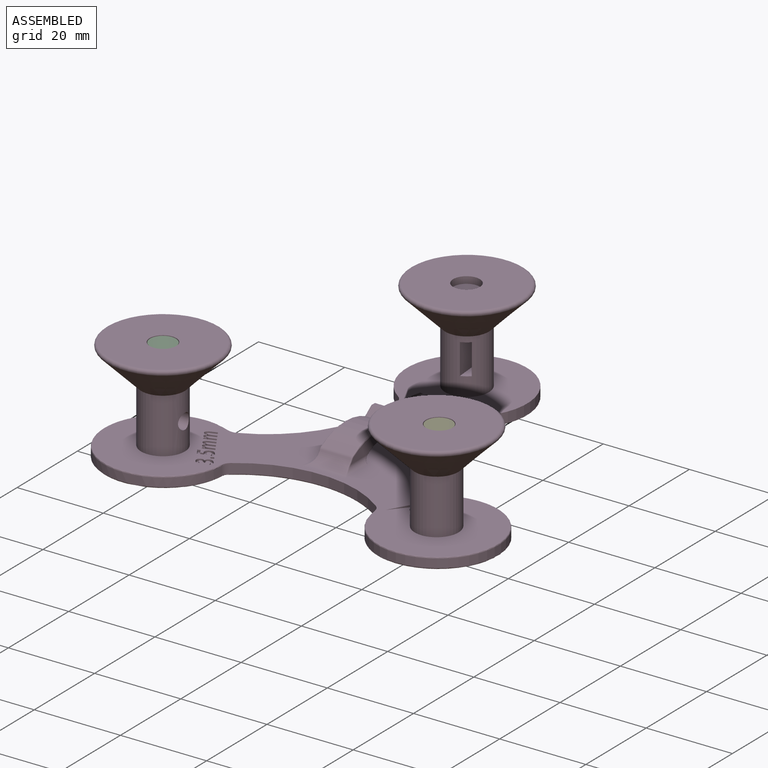
[diagram: assembled view]
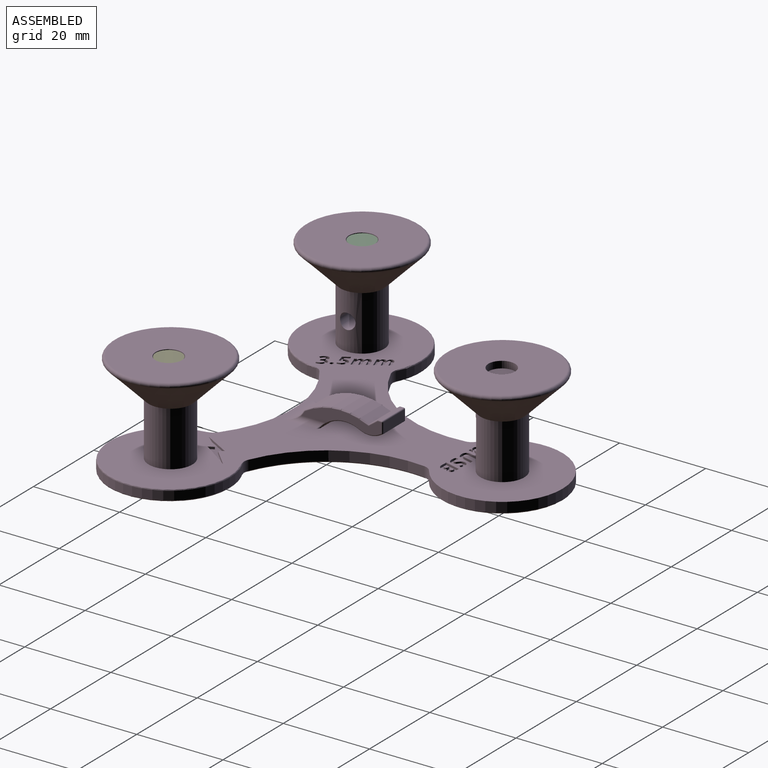
[diagram: assembled view, second angle]
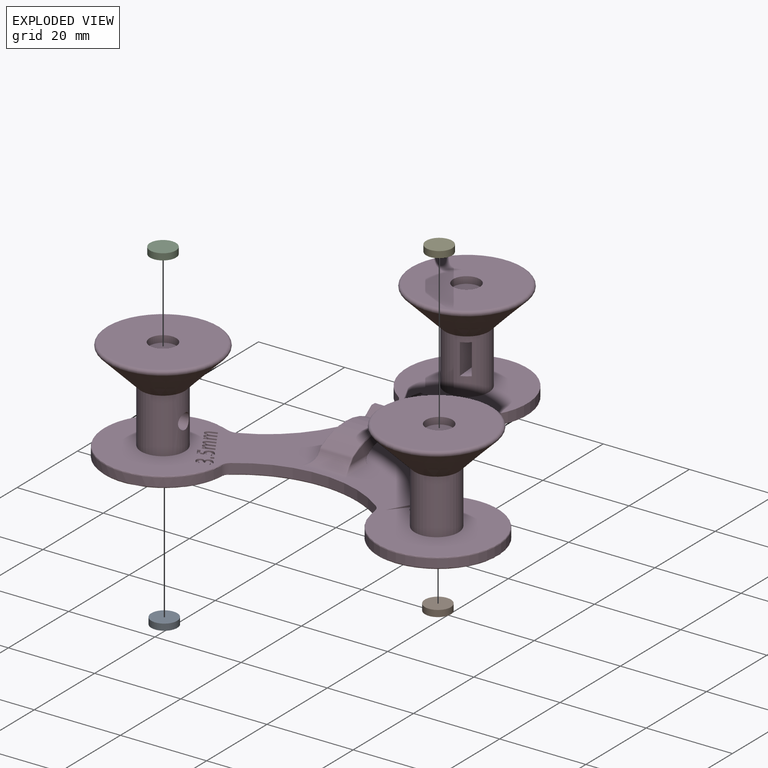
[diagram: exploded view]
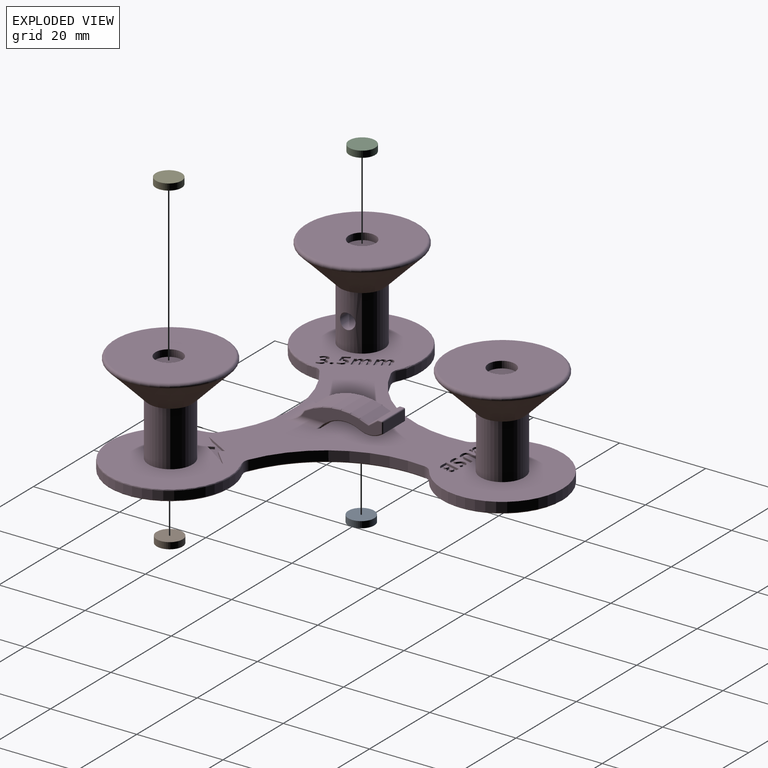
[diagram: exploded view, second angle]
ASSEMBLY  parts=5 mates=4
PART A: 3 faces, bbox 6x6x1.5 mm
  f0: cylinder r=3mm len=6mm, axis (0,0,-1), area 28.3mm2, adj f1,f2
  f1: plane 6x6mm, normal (0,0,1), area 28.3mm2, adj f0
  f2: plane 6x6mm, normal (0,0,-1), area 28.3mm2, adj f0
PART B: same geometry as A
PART C: same geometry as A
PART D: 319 faces, bbox 93.9x85.4x24.3 mm
  f0: plane 18.61x3.56mm, normal (1,0,0), area 40mm2, adj f43,f45,f47,f49,f50,f52,f53,f55
  f1: plane 18.61x3.56mm, normal (-1,0,0), area 40mm2, adj f42,f51,f54,f57,f59,f61,f63,f64
  f2: cylinder r=5.08mm len=12.7mm, axis (0,0,-1), area 389.3mm2, adj f3,f17,f295,f296,f297,f298
  f3: plane 91.08x82.83mm, normal (0,0,1), area 2398.7mm2, adj f2,f4,f6,f8,f9,f10,f12,f36
  f4: cylinder r=5.08mm len=12.7mm, axis (0,0,-1), area 392.3mm2, adj f3,f15,f78,f79,f80,f81
  f5: cylinder r=13.97mm len=27.94mm, axis (0,0,-1), area 144.3mm2, adj f71,f77,f301,f304
  f6: cylinder r=27.94mm len=33.66mm, axis (0,0,-1), area 82.5mm2, adj f3,f73,f301,f302,f307,f308
  f7: cylinder r=13.97mm len=27.94mm, axis (0,0,-1), area 144.3mm2, adj f75,f76,f307,f310
  f8: cylinder r=27.94mm len=29.14mm, axis (0,0,-1), area 82.5mm2, adj f3,f74,f310,f311,f314
  f9: cylinder r=13.97mm len=27.94mm, axis (0,0,-1), area 162.3mm2, adj f3,f72,f312,f314
  f10: cylinder r=27.94mm len=29.14mm, axis (0,0,-1), area 82.5mm2, adj f3,f70,f304,f305,f312
  f11: plane 90.93x82.42mm, normal (0,0,-1), area 2622.1mm2, adj f67,f68,f69,f70,f71,f72,f73,f74
  f12: cylinder r=5.08mm len=12.7mm, axis (0,0,-1), area 384.7mm2, adj f3,f13,f83
  f13: cone r=5.08mm half-angle=45deg, axis (0,0,1), area 623.1mm2, adj f12,f21
  f14: plane 24.87x24.87mm, normal (0,0,1), area 455.7mm2, adj f21,f26
  f15: cone r=5.08mm half-angle=45deg, axis (0,0,1), area 623.1mm2, adj f4,f20
  f16: plane 24.87x24.87mm, normal (0,0,1), area 455.7mm2, adj f20,f24
  f17: cone r=5.08mm half-angle=45deg, axis (0,0,1), area 623.1mm2, adj f2,f19
  f18: plane 24.87x24.87mm, normal (0,0,1), area 455.8mm2, adj f19,f22
  f19: torus R=12.44mm, axis (0,0,1), area 121.2mm2, adj f17,f18
  f20: torus R=12.44mm, axis (0,0,1), area 121.2mm2, adj f15,f16
  f21: torus R=12.44mm, axis (0,0,1), area 121.2mm2, adj f13,f14
  f22: cylinder r=3.1mm len=6.2mm, axis (0,0,1), area 30.9mm2, adj f18,f23
  f23: plane 6.2x6.2mm, normal (0,0,1), area 30.2mm2, adj f22
  f24: cylinder r=3.1mm len=6.2mm, axis (0,0,1), area 30.9mm2, adj f16,f25
  f25: plane 6.2x6.2mm, normal (0,0,1), area 30.2mm2, adj f24
  f26: cylinder r=3.1mm len=6.2mm, axis (0,0,1), area 30.9mm2, adj f14,f27
  f27: plane 6.2x6.2mm, normal (0,0,1), area 30.2mm2, adj f26
  f28: cylinder r=3.1mm len=6.2mm, axis (0,0,-1), area 26mm2, adj f29,f67
  f29: plane 6.2x6.2mm, normal (0,0,-1), area 30.2mm2, adj f28
  f30: cylinder r=3.1mm len=6.2mm, axis (0,0,-1), area 26mm2, adj f31,f68
  f31: plane 6.2x6.2mm, normal (0,0,-1), area 30.2mm2, adj f30
  f32: cylinder r=3.1mm len=6.2mm, axis (0,0,-1), area 26mm2, adj f33,f69
  f33: plane 6.2x6.2mm, normal (0,0,-1), area 30.2mm2, adj f32
  f34: plane 7.11x0.95mm, normal (0,0,1), area 6.7mm2, adj f39,f56,f60,f61
  f35: plane 7.11x2.46mm, normal (0,1,0), area 17.5mm2, adj f37,f55,f60,f63
  f36: cylinder r=7.21mm len=8.76mm, axis (-1,0,0), area 69.3mm2, adj f3,f46,f49,f65,f66,f317
  f37: plane 7.11x0.36mm, normal (0,0.55,-0.83), area 3.1mm2, adj f35,f52,f64,f317
  f38: cylinder r=15.19mm len=14.69mm, axis (-1,0,0), area 109.3mm2, adj f39,f41,f50,f57
  f39: plane 7.11x2.11mm, normal (0,-0.59,0.81), area 18.6mm2, adj f34,f38,f53,f59
  f40: cylinder r=4.57mm len=10.16mm, axis (-1,0,0), area 39.7mm2, adj f3,f41,f44,f45,f48,f51
  f41: cylinder r=1.27mm len=7.11mm, axis (1,0,0), area 4.4mm2, adj f38,f40,f47,f54
  f42: cylinder r=1.27mm len=9.13mm, axis (0,-1,0), area 13.2mm2, adj f1,f3,f48,f66
  f43: cylinder r=1.27mm len=9.13mm, axis (0,1,0), area 13.2mm2, adj f0,f3,f44,f46
  f44: bspline ~3.85x1.82mm, area 0.5mm2, adj f40,f43,f45
  f45: torus R=4.83mm, axis (-1,0,0), area 0.4mm2, adj f0,f40,f44,f47
  f46: bspline ~2.36x2.11mm, area 1mm2, adj f3,f36,f43,f49
  f47: torus R=1.02mm, axis (-1,0,0), area 0.2mm2, adj f0,f41,f45,f50
  f48: bspline ~3.85x1.82mm, area 0.5mm2, adj f40,f42,f51
  f49: torus R=7.46mm, axis (-1,0,0), area 3.3mm2, adj f0,f36,f46,f316
  f50: torus R=14.94mm, axis (-1,0,0), area 6.1mm2, adj f0,f38,f47,f53
  f51: torus R=4.83mm, axis (-1,0,0), area 0.4mm2, adj f1,f40,f48,f54
  f52: cylinder r=0.25mm len=0.5mm, axis (0,-0.83,-0.55), area 0.1mm2, adj f0,f37,f55,f316
  f53: cylinder r=0.25mm len=2.38mm, axis (0,0.81,0.59), area 1.1mm2, adj f0,f39,f50,f56
  f54: torus R=1.02mm, axis (-1,0,0), area 0.2mm2, adj f1,f41,f51,f57
  f55: cylinder r=0.25mm len=2.46mm, axis (0,0,-1), area 1mm2, adj f0,f35,f52,f58
  f56: cylinder r=0.25mm len=0.95mm, axis (0,-1,0), area 0.4mm2, adj f0,f34,f53,f58
  f57: torus R=14.94mm, axis (-1,0,0), area 6.1mm2, adj f1,f38,f54,f59
  f58: sphere r=0.25mm, area 0.1mm2, adj f55,f56,f60
  f59: cylinder r=0.25mm len=2.38mm, axis (0,0.81,0.59), area 1.1mm2, adj f1,f39,f57,f61
  f60: cylinder r=0.25mm len=7.11mm, axis (1,0,0), area 2.8mm2, adj f34,f35,f58,f62
  f61: cylinder r=0.25mm len=0.95mm, axis (0,1,0), area 0.4mm2, adj f1,f34,f59,f62
  f62: sphere r=0.25mm, area 0.1mm2, adj f60,f61,f63
  f63: cylinder r=0.25mm len=2.46mm, axis (0,0,1), area 1mm2, adj f1,f35,f62,f64
  f64: cylinder r=0.25mm len=0.5mm, axis (0,-0.83,-0.55), area 0.1mm2, adj f1,f37,f63,f318
  f65: torus R=7.46mm, axis (-1,0,0), area 3.3mm2, adj f1,f36,f66,f318
  f66: bspline ~2.36x2.11mm, area 1mm2, adj f3,f36,f42,f65
  f67: torus R=3.35mm, axis (0,0,1), area 8mm2, adj f11,f28
  f68: torus R=3.35mm, axis (0,0,1), area 8mm2, adj f11,f30
  f69: torus R=3.35mm, axis (0,0,1), area 8mm2, adj f11,f32
  f70: torus R=28.19mm, axis (0,0,1), area 15mm2, adj f10,f11,f303,f313
  f71: torus R=13.72mm, axis (0,0,1), area 28.6mm2, adj f5,f11,f300,f303
  f72: torus R=13.72mm, axis (0,0,1), area 28.6mm2, adj f9,f11,f313,f315
  f73: torus R=28.19mm, axis (0,0,1), area 15mm2, adj f6,f11,f300,f306
  f74: torus R=28.19mm, axis (0,0,1), area 15mm2, adj f8,f11,f309,f315
  f75: torus R=13.72mm, axis (0,0,1), area 28.6mm2, adj f7,f11,f306,f309
  f76: torus R=13.72mm, axis (0,0,1), area 26.7mm2, adj f3,f7,f308,f311
  f77: torus R=13.72mm, axis (0,0,1), area 26.7mm2, adj f3,f5,f302,f305
  f78: plane 7x5.69mm, normal (0.09,-1,0), area 40mm2, adj f4,f79,f81,f82
  f79: plane 5.84x2.13mm, normal (0,0,-1), area 9.2mm2, adj f4,f78,f80,f82
  f80: plane 7x4.96mm, normal (-0.09,1,0), area 34.9mm2, adj f4,f79,f81,f82
  f81: plane 5.84x2.13mm, normal (0,0,1), area 9.2mm2, adj f4,f78,f80,f82
  f82: plane 7x1.69mm, normal (-1,-0.09,0), area 11.9mm2, adj f78,f79,f80,f81
  f83: cylinder r=1.8mm len=10.16mm, axis (1,0,0), area 114.9mm2, adj f12
  f84: plane 1.48x0.51mm, normal (0.97,-0.25,0), area 0.8mm2, adj f3,f85,f100,f101
  f85: extruded ~0.52x0.51mm, area 0.3mm2, adj f3,f84,f86,f101
  f86: extruded ~0.6x0.51mm, area 0.3mm2, adj f3,f85,f87,f101
  f87: extruded ~0.51x0.51mm, area 0.3mm2, adj f3,f86,f88,f101
  f88: extruded ~0.91x0.52mm, area 0.6mm2, adj f3,f87,f89,f101
  f89: plane 0.51x0.02mm, normal (0.05,1,0), area 0mm2, adj f3,f88,f90,f101
  f90: plane 0.51x0.51mm, normal (0.99,-0.15,0), area 0.3mm2, adj f3,f89,f91,f101
  f91: plane 0.57x0.51mm, normal (0.05,1,0), area 0.3mm2, adj f3,f90,f92,f101
  f92: plane 2.74x0.72mm, normal (-0.97,0.25,0), area 1.4mm2, adj f3,f91,f93,f101
  f93: plane 0.75x0.51mm, normal (-0.05,-1,0), area 0.4mm2, adj f3,f92,f94,f101
  f94: plane 1.14x0.51mm, normal (0.97,-0.25,0), area 0.6mm2, adj f3,f93,f95,f101
  f95: extruded ~0.77x0.51mm, area 0.4mm2, adj f3,f94,f96,f101
  f96: extruded ~0.51x0.43mm, area 0.3mm2, adj f3,f95,f97,f101
  f97: extruded ~0.51x0.32mm, area 0.2mm2, adj f3,f96,f98,f101
  f98: extruded ~0.51x0.29mm, area 0.2mm2, adj f3,f97,f99,f101
  f99: plane 1.6x0.51mm, normal (-0.97,0.25,0), area 0.8mm2, adj f3,f98,f100,f101
  f100: plane 0.75x0.51mm, normal (-0.05,-1,0), area 0.4mm2, adj f3,f84,f99,f101
  f101: plane 2.86x2.82mm, normal (0,0,1), area 4.5mm2, adj f84,f85,f86,f87,f88,f89,f90,f91
  f102: plane 1.06x0.51mm, normal (-0.05,-1,0), area 0.5mm2, adj f3,f103,f125,f126
  f103: plane 3.58x0.94mm, normal (0.97,-0.25,0), area 1.9mm2, adj f3,f102,f104,f126
  f104: plane 1.29x0.51mm, normal (0.05,1,0), area 0.7mm2, adj f3,f103,f105,f126
  f105: extruded ~1.06x0.51mm, area 0.6mm2, adj f3,f104,f106,f126
  f106: extruded ~0.86x0.51mm, area 0.5mm2, adj f3,f105,f107,f126
  f107: extruded ~0.51x0.45mm, area 0.2mm2, adj f3,f106,f108,f126
  f108: extruded ~0.51x0.38mm, area 0.2mm2, adj f3,f107,f109,f126
  f109: plane 0.51x0.02mm, normal (-1,0.05,0), area 0mm2, adj f3,f108,f110,f126
  f110: extruded ~0.6x0.51mm, area 0.3mm2, adj f3,f109,f111,f126
  f111: extruded ~0.6x0.51mm, area 0.3mm2, adj f3,f110,f112,f126
  f112: extruded ~0.62x0.51mm, area 0.4mm2, adj f3,f111,f125,f126
  f113: plane 0.8x0.51mm, normal (-0.97,0.25,0), area 0.4mm2, adj f114,f123,f126,f128
  f114: plane 0.51x0.38mm, normal (0.05,1,0), area 0.2mm2, adj f113,f115,f126,f128
  f115: extruded ~0.51x0.41mm, area 0.3mm2, adj f114,f116,f126,f128
  f116: extruded ~0.51x0.34mm, area 0.2mm2, adj f115,f117,f126,f128
  f117: extruded ~0.51x0.46mm, area 0.2mm2, adj f116,f123,f126,f128
  f118: plane 0.93x0.51mm, normal (-0.97,0.26,0), area 0.5mm2, adj f119,f124,f126,f127
  f119: plane 0.51x0.41mm, normal (0.05,1,0), area 0.2mm2, adj f118,f120,f126,f127
  f120: extruded ~0.51x0.43mm, area 0.4mm2, adj f119,f121,f126,f127
  f121: extruded ~0.51x0.39mm, area 0.2mm2, adj f120,f122,f126,f127
  f122: extruded ~0.51x0.46mm, area 0.2mm2, adj f121,f124,f126,f127
  f123: plane 0.51x0.37mm, normal (-0.05,-1,0), area 0.2mm2, adj f113,f117,f126,f128
  f124: plane 0.51x0.45mm, normal (-0.05,-1,0), area 0.2mm2, adj f118,f122,f126,f127
  f125: extruded ~0.85x0.51mm, area 0.5mm2, adj f3,f102,f112,f126
  f126: plane 3.68x3.12mm, normal (0,0,1), area 6.7mm2, adj f102,f103,f104,f105,f106,f107,f108,f109
  f127: plane 1.11x0.97mm, normal (0,0,1), area 0.8mm2, adj f118,f119,f120,f121,f122,f124
  f128: plane 1.01x0.83mm, normal (0,0,1), area 0.6mm2, adj f113,f114,f115,f116,f117,f123
  f129: extruded ~0.57x0.51mm, area 0.3mm2, adj f3,f130,f152,f153
  f130: extruded ~0.51x0.46mm, area 0.3mm2, adj f3,f129,f131,f153
  f131: extruded ~0.51x0.35mm, area 0.2mm2, adj f3,f130,f132,f153
  f132: extruded ~0.51x0.27mm, area 0.1mm2, adj f3,f131,f133,f153
  f133: extruded ~0.51x0.29mm, area 0.2mm2, adj f3,f132,f134,f153
  f134: extruded ~0.51x0.34mm, area 0.2mm2, adj f3,f133,f135,f153
  f135: extruded ~0.7x0.51mm, area 0.4mm2, adj f3,f134,f136,f153
  f136: plane 0.56x0.51mm, normal (-0.88,0.47,0), area 0.3mm2, adj f3,f135,f137,f153
  f137: extruded ~0.97x0.51mm, area 0.5mm2, adj f3,f136,f138,f153
  f138: extruded ~0.66x0.51mm, area 0.3mm2, adj f3,f137,f139,f153
  f139: extruded ~0.51x0.46mm, area 0.3mm2, adj f3,f138,f140,f153
  f140: extruded ~0.56x0.51mm, area 0.3mm2, adj f3,f139,f141,f153
  f141: extruded ~0.52x0.51mm, area 0.3mm2, adj f3,f140,f142,f153
  f142: extruded ~0.51x0.51mm, area 0.4mm2, adj f3,f141,f143,f153
  f143: extruded ~0.51x0.29mm, area 0.2mm2, adj f3,f142,f144,f153
  f144: extruded ~0.51x0.15mm, area 0.1mm2, adj f3,f143,f145,f153
  f145: extruded ~0.51x0.19mm, area 0.1mm2, adj f3,f144,f146,f153
  f146: extruded ~0.51x0.28mm, area 0.2mm2, adj f3,f145,f147,f153
  f147: extruded ~0.51x0.44mm, area 0.2mm2, adj f3,f146,f148,f153
  f148: extruded ~0.87x0.51mm, area 0.5mm2, adj f3,f147,f149,f153
  f149: plane 0.68x0.51mm, normal (1,-0.05,0), area 0.3mm2, adj f3,f148,f150,f153
  f150: extruded ~0.87x0.51mm, area 0.5mm2, adj f3,f149,f151,f153
  f151: extruded ~1.01x0.51mm, area 0.5mm2, adj f3,f150,f152,f153
  f152: extruded ~0.8x0.51mm, area 0.5mm2, adj f3,f129,f151,f153
  f153: plane 3.73x2.81mm, normal (0,0,1), area 4.6mm2, adj f129,f130,f131,f132,f133,f134,f135,f136
  f154: plane 0.76x0.51mm, normal (-0.05,-1,0), area 0.4mm2, adj f3,f155,f168,f169
  f155: plane 2.25x0.59mm, normal (0.97,-0.25,0), area 1.2mm2, adj f3,f154,f156,f169
  f156: extruded ~0.55x0.51mm, area 0.3mm2, adj f3,f155,f157,f169
  f157: extruded ~0.51x0.49mm, area 0.3mm2, adj f3,f156,f158,f169
  f158: extruded ~0.51x0.46mm, area 0.4mm2, adj f3,f157,f159,f169
  f159: extruded ~0.51x0.31mm, area 0.2mm2, adj f3,f158,f160,f169
  f160: plane 2.25x0.59mm, normal (-0.97,0.25,0), area 1.2mm2, adj f3,f159,f161,f169
  f161: plane 0.76x0.51mm, normal (-0.05,-1,0), area 0.4mm2, adj f3,f160,f162,f169
  f162: plane 2.26x0.6mm, normal (0.97,-0.25,0), area 1.2mm2, adj f3,f161,f163,f169
  f163: extruded ~0.51x0.34mm, area 0.2mm2, adj f3,f162,f164,f169
  f164: extruded ~0.78x0.51mm, area 0.4mm2, adj f3,f163,f165,f169
  f165: extruded ~0.81x0.51mm, area 0.5mm2, adj f3,f164,f166,f169
  f166: extruded ~1.05x0.51mm, area 0.6mm2, adj f3,f165,f167,f169
  f167: extruded ~0.97x0.59mm, area 0.6mm2, adj f3,f166,f168,f169
  f168: plane 2.32x0.61mm, normal (-0.97,0.25,0), area 1.2mm2, adj f3,f154,f167,f169
  f169: plane 3.73x3.35mm, normal (0,0,1), area 5.8mm2, adj f154,f155,f156,f157,f158,f159,f160,f161
  f170: plane 4.24x4.18mm, normal (0.7,-0.71,0), area 3mm2, adj f3,f171,f175,f176
  f171: plane 1.01x0.82mm, normal (-0.78,-0.63,0), area 0.7mm2, adj f3,f170,f172,f176
  f172: plane 6.2x3.51mm, normal (0.87,-0.49,0), area 3.6mm2, adj f3,f171,f173,f176
  f173: plane 3.6x3.08mm, normal (-0.76,0.65,0), area 2.4mm2, adj f3,f172,f174,f176
  f174: plane 1.22x0.68mm, normal (0.87,0.49,0), area 0.7mm2, adj f3,f173,f175,f176
  f175: plane 6.99x4.82mm, normal (-0.82,0.57,0), area 4.3mm2, adj f3,f170,f174,f176
  f176: plane 9.37x8.57mm, normal (0,0,1), area 10.6mm2, adj f170,f171,f172,f173,f174,f175
  f177: extruded ~0.51x0.51mm, area 0.3mm2, adj f3,f178,f204,f205
  f178: extruded ~0.7x0.51mm, area 0.4mm2, adj f3,f177,f179,f205
  f179: extruded ~0.51x0.45mm, area 0.3mm2, adj f3,f178,f180,f205
  f180: extruded ~0.51x0.5mm, area 0.3mm2, adj f3,f179,f181,f205
  f181: plane 0.51x0.5mm, normal (-0.89,0.45,0), area 0.3mm2, adj f3,f180,f182,f205
  f182: extruded ~0.54x0.51mm, area 0.4mm2, adj f3,f181,f183,f205
  f183: extruded ~0.51x0.28mm, area 0.2mm2, adj f3,f182,f184,f205
  f184: extruded ~0.51x0.21mm, area 0.1mm2, adj f3,f183,f185,f205
  f185: extruded ~0.51x0.46mm, area 0.2mm2, adj f3,f184,f186,f205
  f186: extruded ~0.51x0.45mm, area 0.3mm2, adj f3,f185,f187,f205
  f187: plane 0.51x0.14mm, normal (0.85,0.52,0), area 0.1mm2, adj f3,f186,f188,f205
  f188: plane 0.51x0.49mm, normal (-0.33,0.94,0), area 0.3mm2, adj f3,f187,f189,f205
  f189: plane 0.51x0.27mm, normal (-0.85,-0.52,0), area 0.2mm2, adj f3,f188,f190,f205
  f190: extruded ~0.72x0.51mm, area 0.4mm2, adj f3,f189,f191,f205
  f191: extruded ~0.51x0.45mm, area 0.2mm2, adj f3,f190,f192,f205
  f192: extruded ~0.51x0.42mm, area 0.3mm2, adj f3,f191,f193,f205
  f193: extruded ~0.51x0.41mm, area 0.2mm2, adj f3,f192,f194,f205
  f194: extruded ~0.51x0.45mm, area 0.2mm2, adj f3,f193,f195,f205
  f195: plane 0.53x0.51mm, normal (-0.52,0.85,0), area 0.3mm2, adj f3,f194,f196,f205
  f196: extruded ~0.86x0.51mm, area 0.5mm2, adj f3,f195,f197,f205
  f197: extruded ~0.58x0.51mm, area 0.4mm2, adj f3,f196,f198,f205
  f198: extruded ~0.58x0.51mm, area 0.3mm2, adj f3,f197,f199,f205
  f199: extruded ~0.56x0.51mm, area 0.3mm2, adj f3,f198,f200,f205
  f200: extruded ~0.51x0.38mm, area 0.3mm2, adj f3,f199,f201,f205
  f201: extruded ~0.52x0.51mm, area 0.3mm2, adj f3,f200,f202,f205
  f202: plane 0.51x0.01mm, normal (0.52,-0.85,0), area 0mm2, adj f3,f201,f203,f205
  f203: extruded ~0.58x0.51mm, area 0.4mm2, adj f3,f202,f204,f205
  f204: extruded ~0.63x0.51mm, area 0.3mm2, adj f3,f177,f203,f205
  f205: plane 3.86x2.81mm, normal (0,0,1), area 4.1mm2, adj f177,f178,f179,f180,f181,f182,f183,f184
  f206: extruded ~0.88x0.51mm, area 0.5mm2, adj f3,f207,f233,f234
  f207: plane 0.51x0.01mm, normal (0.85,0.52,0), area 0mm2, adj f3,f206,f208,f234
  f208: plane 0.51x0.44mm, normal (0.43,-0.9,0), area 0.2mm2, adj f3,f207,f209,f234
  f209: plane 0.51x0.46mm, normal (0.85,0.52,0), area 0.3mm2, adj f3,f208,f210,f234
  f210: plane 2.5x0.88mm, normal (-0.33,0.94,0), area 1.3mm2, adj f3,f209,f211,f234
  f211: plane 0.6x0.51mm, normal (-0.85,-0.52,0), area 0.4mm2, adj f3,f210,f212,f234
  f212: plane 1.04x0.51mm, normal (0.33,-0.94,0), area 0.6mm2, adj f3,f211,f213,f234
  f213: extruded ~0.77x0.51mm, area 0.4mm2, adj f3,f212,f214,f234
  f214: extruded ~0.51x0.43mm, area 0.2mm2, adj f3,f213,f215,f234
  f215: extruded ~0.51x0.34mm, area 0.2mm2, adj f3,f214,f216,f234
  f216: extruded ~0.51x0.26mm, area 0.1mm2, adj f3,f215,f217,f234
  f217: plane 1.46x0.52mm, normal (-0.33,0.94,0), area 0.8mm2, adj f3,f216,f218,f234
  f218: plane 0.6x0.51mm, normal (-0.85,-0.52,0), area 0.4mm2, adj f3,f217,f219,f234
  f219: plane 1.04x0.51mm, normal (0.34,-0.94,0), area 0.6mm2, adj f3,f218,f220,f234
  f220: extruded ~0.77x0.51mm, area 0.4mm2, adj f3,f219,f221,f234
  f221: extruded ~0.51x0.42mm, area 0.2mm2, adj f3,f220,f222,f234
  f222: extruded ~0.51x0.34mm, area 0.2mm2, adj f3,f221,f223,f234
  f223: extruded ~0.51x0.26mm, area 0.1mm2, adj f3,f222,f224,f234
  f224: plane 1.46x0.51mm, normal (-0.33,0.94,0), area 0.8mm2, adj f3,f223,f225,f234
  f225: plane 0.6x0.51mm, normal (-0.85,-0.52,0), area 0.4mm2, adj f3,f224,f226,f234
  f226: plane 1.42x0.51mm, normal (0.33,-0.94,0), area 0.8mm2, adj f3,f225,f227,f234
  f227: extruded ~0.51x0.38mm, area 0.2mm2, adj f3,f226,f228,f234
  f228: extruded ~0.51x0.43mm, area 0.3mm2, adj f3,f227,f229,f234
  f229: extruded ~0.51x0.51mm, area 0.3mm2, adj f3,f228,f230,f234
  f230: extruded ~0.51x0.35mm, area 0.2mm2, adj f3,f229,f231,f234
  f231: extruded ~0.53x0.51mm, area 0.3mm2, adj f3,f230,f232,f234
  f232: plane 0.51x0.01mm, normal (0.85,0.52,0), area 0mm2, adj f3,f231,f233,f234
  f233: extruded ~0.79x0.51mm, area 0.5mm2, adj f3,f206,f232,f234
  f234: plane 4.11x3.96mm, normal (0,0,1), area 6mm2, adj f206,f207,f208,f209,f210,f211,f212,f213
  f235: extruded ~0.88x0.51mm, area 0.5mm2, adj f3,f236,f262,f263
  f236: plane 0.51x0.01mm, normal (0.85,0.52,0), area 0mm2, adj f3,f235,f237,f263
  f237: plane 0.51x0.44mm, normal (0.43,-0.9,0), area 0.2mm2, adj f3,f236,f238,f263
  f238: plane 0.51x0.46mm, normal (0.85,0.52,0), area 0.3mm2, adj f3,f237,f239,f263
  f239: plane 2.5x0.88mm, normal (-0.33,0.94,0), area 1.3mm2, adj f3,f238,f240,f263
  f240: plane 0.6x0.51mm, normal (-0.85,-0.52,0), area 0.4mm2, adj f3,f239,f241,f263
  f241: plane 1.04x0.51mm, normal (0.33,-0.94,0), area 0.6mm2, adj f3,f240,f242,f263
  f242: extruded ~0.77x0.51mm, area 0.4mm2, adj f3,f241,f243,f263
  f243: extruded ~0.51x0.43mm, area 0.2mm2, adj f3,f242,f244,f263
  f244: extruded ~0.51x0.34mm, area 0.2mm2, adj f3,f243,f245,f263
  f245: extruded ~0.51x0.26mm, area 0.1mm2, adj f3,f244,f246,f263
  f246: plane 1.46x0.52mm, normal (-0.33,0.94,0), area 0.8mm2, adj f3,f245,f247,f263
  f247: plane 0.6x0.51mm, normal (-0.85,-0.52,0), area 0.4mm2, adj f3,f246,f248,f263
  f248: plane 1.04x0.51mm, normal (0.34,-0.94,0), area 0.6mm2, adj f3,f247,f249,f263
  f249: extruded ~0.77x0.51mm, area 0.4mm2, adj f3,f248,f250,f263
  f250: extruded ~0.51x0.42mm, area 0.2mm2, adj f3,f249,f251,f263
  f251: extruded ~0.51x0.34mm, area 0.2mm2, adj f3,f250,f252,f263
  f252: extruded ~0.51x0.26mm, area 0.1mm2, adj f3,f251,f253,f263
  f253: plane 1.46x0.51mm, normal (-0.33,0.94,0), area 0.8mm2, adj f3,f252,f254,f263
  f254: plane 0.6x0.51mm, normal (-0.85,-0.52,0), area 0.4mm2, adj f3,f253,f255,f263
  f255: plane 1.42x0.51mm, normal (0.33,-0.94,0), area 0.8mm2, adj f3,f254,f256,f263
  f256: extruded ~0.51x0.38mm, area 0.2mm2, adj f3,f255,f257,f263
  f257: extruded ~0.51x0.43mm, area 0.3mm2, adj f3,f256,f258,f263
  f258: extruded ~0.51x0.51mm, area 0.3mm2, adj f3,f257,f259,f263
  f259: extruded ~0.51x0.35mm, area 0.2mm2, adj f3,f258,f260,f263
  f260: extruded ~0.53x0.51mm, area 0.3mm2, adj f3,f259,f261,f263
  f261: plane 0.51x0.01mm, normal (0.85,0.52,0), area 0mm2, adj f3,f260,f262,f263
  f262: extruded ~0.79x0.51mm, area 0.5mm2, adj f3,f235,f261,f263
  f263: plane 4.11x3.96mm, normal (0,0,1), area 6mm2, adj f235,f236,f237,f238,f239,f240,f241,f242
  f264: extruded ~0.51x0.21mm, area 0.1mm2, adj f3,f265,f271,f272
  f265: extruded ~0.51x0.27mm, area 0.1mm2, adj f3,f264,f266,f272
  f266: extruded ~0.51x0.28mm, area 0.2mm2, adj f3,f265,f267,f272
  f267: extruded ~0.51x0.35mm, area 0.2mm2, adj f3,f266,f268,f272
  f268: extruded ~0.51x0.21mm, area 0.1mm2, adj f3,f267,f269,f272
  f269: extruded ~0.51x0.26mm, area 0.1mm2, adj f3,f268,f270,f272
  f270: extruded ~0.51x0.29mm, area 0.2mm2, adj f3,f269,f271,f272
  f271: extruded ~0.51x0.35mm, area 0.2mm2, adj f3,f264,f270,f272
  f272: plane 0.88x0.82mm, normal (0,0,1), area 0.5mm2, adj f264,f265,f266,f267,f268,f269,f270,f271
  f273: extruded ~0.51x0.23mm, area 0.2mm2, adj f3,f274,f293,f294
  f274: plane 0.69x0.51mm, normal (0.25,-0.97,0), area 0.4mm2, adj f3,f273,f275,f294
  f275: plane 0.97x0.59mm, normal (-0.85,-0.52,0), area 0.6mm2, adj f3,f274,f276,f294
  f276: plane 0.59x0.51mm, normal (0.33,-0.94,0), area 0.3mm2, adj f3,f275,f277,f294
  f277: plane 1.5x0.91mm, normal (0.85,0.52,0), area 0.9mm2, adj f3,f276,f278,f294
  f278: plane 1.7x0.51mm, normal (-0.27,0.96,0), area 0.9mm2, adj f3,f277,f279,f294
  f279: plane 0.51x0.3mm, normal (-1,0.1,0), area 0.2mm2, adj f3,f278,f280,f294
  f280: extruded ~0.51x0.38mm, area 0.3mm2, adj f3,f279,f281,f294
  f281: extruded ~0.51x0.39mm, area 0.2mm2, adj f3,f280,f282,f294
  f282: extruded ~0.51x0.28mm, area 0.2mm2, adj f3,f281,f283,f294
  f283: extruded ~0.51x0.49mm, area 0.3mm2, adj f3,f282,f284,f294
  f284: extruded ~0.51x0.43mm, area 0.3mm2, adj f3,f283,f285,f294
  f285: extruded ~0.82x0.51mm, area 0.4mm2, adj f3,f284,f286,f294
  f286: plane 0.53x0.51mm, normal (-0.52,0.85,0), area 0.3mm2, adj f3,f285,f287,f294
  f287: extruded ~0.51x0.39mm, area 0.2mm2, adj f3,f286,f288,f294
  f288: extruded ~0.51x0.46mm, area 0.3mm2, adj f3,f287,f289,f294
  f289: extruded ~0.57x0.53mm, area 0.4mm2, adj f3,f288,f290,f294
  f290: extruded ~0.63x0.51mm, area 0.3mm2, adj f3,f289,f291,f294
  f291: extruded ~0.66x0.51mm, area 0.4mm2, adj f3,f290,f292,f294
  f292: extruded ~0.56x0.51mm, area 0.4mm2, adj f3,f291,f293,f294
  f293: extruded ~0.7x0.51mm, area 0.4mm2, adj f3,f273,f292,f294
  f294: plane 4.1x2.62mm, normal (0,0,1), area 4.3mm2, adj f273,f274,f275,f276,f277,f278,f279,f280
  f295: plane 7.1x6.51mm, normal (1,0.09,0), area 46.4mm2, adj f2,f296,f298,f299
  f296: plane 6.68x2.47mm, normal (0,0,-1), area 12.2mm2, adj f2,f295,f297,f299
  f297: plane 7.1x5.48mm, normal (-1,-0.09,0), area 39.1mm2, adj f2,f296,f298,f299
  f298: plane 6.68x2.47mm, normal (0,0,1), area 12.2mm2, adj f2,f295,f297,f299
  f299: plane 7.1x1.99mm, normal (0.09,-1,0), area 14.2mm2, adj f295,f296,f297,f298
  f300: bspline ~1.84x1.22mm, area 0.7mm2, adj f71,f73,f301
  f301: cylinder r=2.54mm len=2.03mm, axis (0,0,-1), area 4.4mm2, adj f5,f6,f300,f302
  f302: bspline ~6x4.5mm, area 0.8mm2, adj f3,f6,f77,f301
  f303: bspline ~2.09x0.78mm, area 28105.4mm2, adj f70,f71,f304
  f304: cylinder r=2.54mm len=2.09mm, axis (0,0,-1), area 4.4mm2, adj f5,f10,f303,f305
  f305: bspline ~6.33x3.2mm, area 0.8mm2, adj f3,f10,f77,f304
  f306: bspline ~1.84x1.22mm, area 22928.1mm2, adj f73,f75,f307
  f307: cylinder r=2.54mm len=2.03mm, axis (0,0,-1), area 4.4mm2, adj f6,f7,f306,f308
  f308: bspline ~6x4.5mm, area 0.8mm2, adj f3,f6,f76,f307
  f309: bspline ~2.09x0.78mm, area 0.7mm2, adj f74,f75,f310
  f310: cylinder r=2.54mm len=2.09mm, axis (0,0,-1), area 4.4mm2, adj f7,f8,f309,f311
  f311: bspline ~6.33x3.2mm, area 0.8mm2, adj f3,f8,f76,f310
  f312: cylinder r=2.54mm len=2.29mm, axis (0,0,-1), area 4.9mm2, adj f3,f9,f10,f313
  f313: bspline ~1.79x1.14mm, area 0.7mm2, adj f70,f72,f312
  f314: cylinder r=2.54mm len=2.29mm, axis (0,0,-1), area 4.9mm2, adj f3,f8,f9,f315
  f315: bspline ~1.79x1.14mm, area 26483.5mm2, adj f72,f74,f314
  f316: torus R=4.83mm, axis (-1,0,0), area 2.1mm2, adj f0,f49,f52,f317
  f317: cylinder r=5.08mm len=7.11mm, axis (-1,0,0), area 38mm2, adj f36,f37,f316,f318
  f318: torus R=4.83mm, axis (-1,0,0), area 2.1mm2, adj f1,f64,f65,f317
PART E: same geometry as A
PLACE A t=(-39.52,-57.58,-2.33)mm
PLACE B t=(23.98,-57.58,-2.58)mm
PLACE C rot(axis=(1,0,0),180deg) t=(-39.82,-57.58,21.46)mm
PLACE D t=(-7.77,-57.58,-2.58)mm
PLACE E rot(axis=(1,0,0),180deg) t=(24.27,-57.58,21.46)mm
MATE fastened B.f0 <-> D.f7  axis (0,0,-1) through (23.98,-57.58,-2.58)mm
MATE fastened C.f0 <-> D.f12  axis (0,0,-1) through (-39.82,-57.58,19.96)mm
MATE fastened A.f0 <-> D.f5  axis (0,0,-1) through (-39.52,-57.58,-2.33)mm
MATE fastened E.f0 <-> D.f24  axis (0,0,-1) through (24.27,-57.58,19.96)mm
